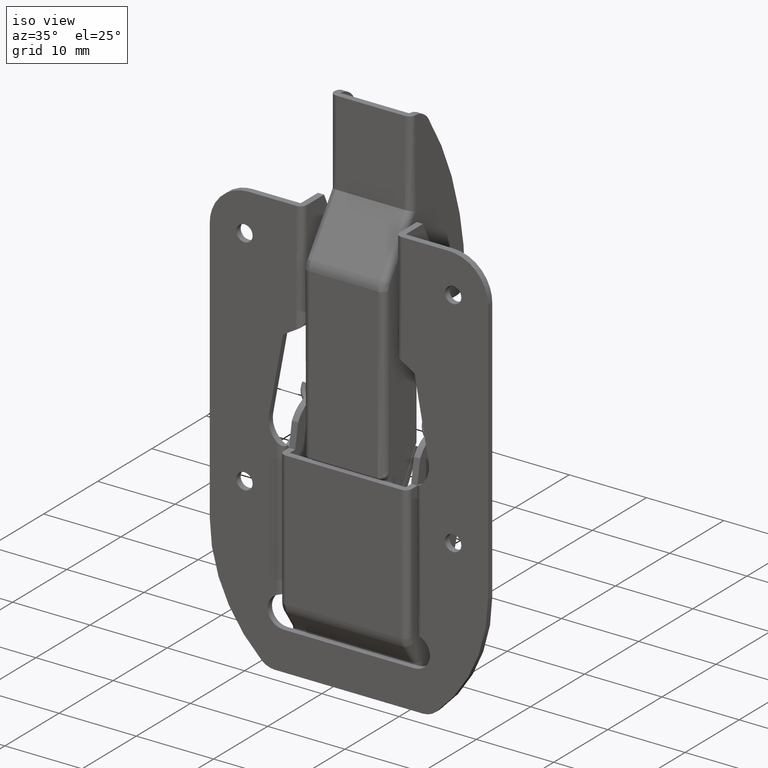
[diagram: clean part render]
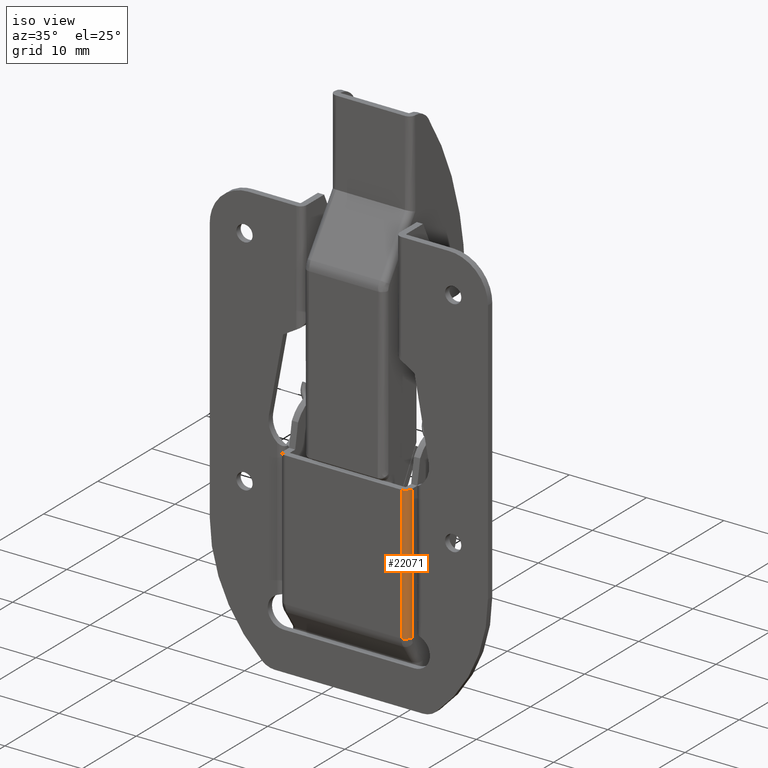
[diagram: same view with one face highlighted and labeled with its STEP entity id]
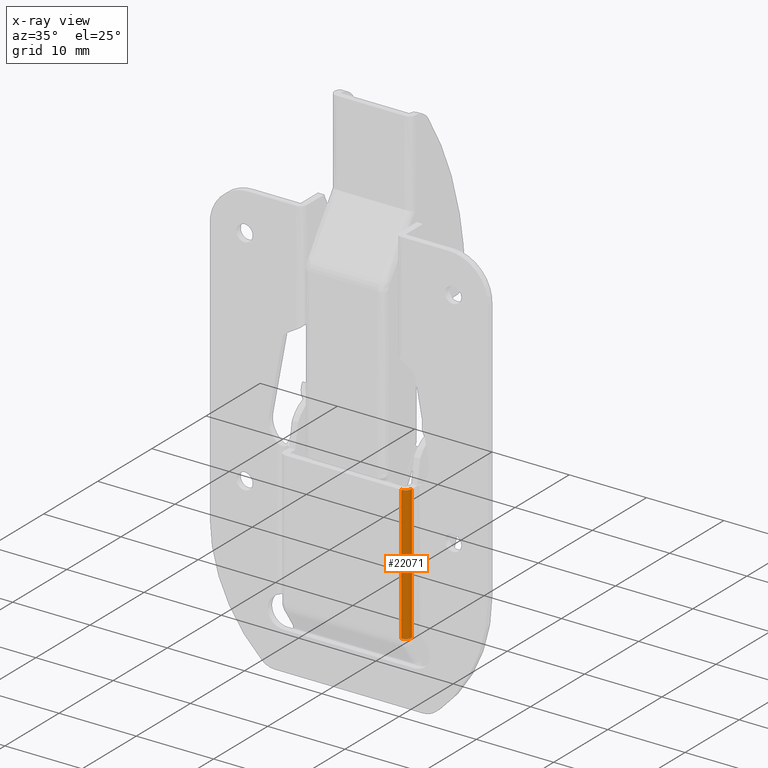
[diagram: x-ray of the same camera — body ghosted, the highlighted face saturated]
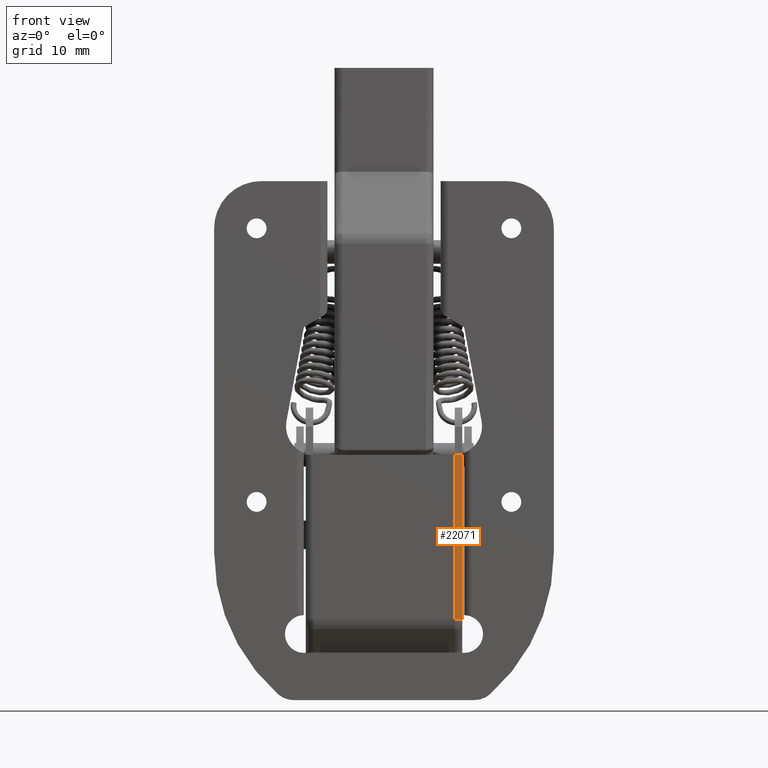
[diagram: same view with one face highlighted and labeled with its STEP entity id]
A machine part, iso view. The second image highlights one B-rep face of the part: STEP entity #22071.
The next image is the same camera in x-ray: the body ghosted, the highlighted face saturated — about 0% of this face is hidden behind the body in this view.
A second angle (front view) of the same face is appended — the face is thin or edge-on in the first view.
In plain terms, the highlighted face is a freeform B-spline surface patch.
Its self-contained STEP definition (entity closure, byte-faithful):
#21978=CARTESIAN_POINT('',(21.800012999999900,-0.200000000000099,-41.394454999999901));
#21979=VERTEX_POINT('',#21978);
#21980=CARTESIAN_POINT('',(21.000012999999850,-1.000000000000100,-41.394454999999901));
#21981=VERTEX_POINT('',#21980);
#21982=CARTESIAN_POINT('',(21.800012999999900,-0.200000000000099,-41.394454999999901));
#21983=CARTESIAN_POINT('',(21.800012999999904,-0.531370849898590,-41.394454999999908));
#21984=CARTESIAN_POINT('',(21.565698424949119,-0.765685424949355,-41.394454999999901));
#21985=CARTESIAN_POINT('',(21.331383849898366,-1.000000000000100,-41.394454999999908));
#21986=CARTESIAN_POINT('',(21.000012999999900,-1.000000000000100,-41.394454999999901));
#21994=(BOUNDED_CURVE()B_SPLINE_CURVE(2,(#21982,#21983,#21984,#21985,#21986),.UNSPECIFIED.,.F.,.U.)B_SPLINE_CURVE_WITH_KNOTS((3,2,3),(0.0,0.500000000000000,1.0),.UNSPECIFIED.)CURVE()GEOMETRIC_REPRESENTATION_ITEM()RATIONAL_B_SPLINE_CURVE((1.0,0.923879532511281,1.0,0.923879532511281,1.0))REPRESENTATION_ITEM(''));
#21995=EDGE_CURVE('',#21979,#21981,#21994,.T.);
#22027=CARTESIAN_POINT('',(21.799738859980302,-0.179058441353801,-41.829316374999912));
#22028=CARTESIAN_POINT('',(21.799738859980302,-0.179058441353794,-23.554267090625000));
#22029=CARTESIAN_POINT('',(21.822806799475622,-1.059987509837058,-41.829316374999905));
#22030=CARTESIAN_POINT('',(21.822806799475622,-1.059987509837056,-23.554267090624993));
#22031=CARTESIAN_POINT('',(20.943757237595392,-0.998019604518869,-41.829316374999905));
#22032=CARTESIAN_POINT('',(20.943757237595392,-0.998019604518866,-23.554267090624997));
#22040=(BOUNDED_SURFACE()B_SPLINE_SURFACE(1,2,((#22027,#22029,#22031),(#22028,#22030,#22032)),.UNSPECIFIED.,.F.,.F.,.U.)B_SPLINE_SURFACE_WITH_KNOTS((2,2),(3,3),(0.0,18.275049284374909),(0.0,0.994518381913565),.UNSPECIFIED.)GEOMETRIC_REPRESENTATION_ITEM()RATIONAL_B_SPLINE_SURFACE(((1.0,0.670944306011289,0.996392484712774),(1.0,0.670944306011289,0.996392484712774)))REPRESENTATION_ITEM('')SURFACE());
#22041=CARTESIAN_POINT('',(21.000012999999850,-1.000000000000092,-24.0));
#22042=VERTEX_POINT('',#22041);
#22043=CARTESIAN_POINT('',(21.800012999999900,-0.200000000000093,-24.0));
#22044=VERTEX_POINT('',#22043);
#22045=CARTESIAN_POINT('',(21.000012999999850,-1.000000000000093,-24.0));
#22046=CARTESIAN_POINT('',(21.800012999999854,-1.000000000000093,-23.999999999999996));
#22047=CARTESIAN_POINT('',(21.800012999999851,-0.200000000000093,-24.0));
#22055=(BOUNDED_CURVE()B_SPLINE_CURVE(2,(#22045,#22046,#22047),.UNSPECIFIED.,.F.,.U.)CURVE()GEOMETRIC_REPRESENTATION_ITEM()QUASI_UNIFORM_CURVE()RATIONAL_B_SPLINE_CURVE((1.0,0.707106781186548,1.0))REPRESENTATION_ITEM(''));
#22056=EDGE_CURVE('',#22042,#22044,#22055,.T.);
#22057=ORIENTED_EDGE('',*,*,#22056,.F.);
#22058=CARTESIAN_POINT('',(21.000012999999850,-1.000000000000100,-41.394454999999901));
#22059=CARTESIAN_POINT('',(21.000012999999850,-1.000000000000092,-24.0));
#22060=QUASI_UNIFORM_CURVE('',1,(#22058,#22059),.UNSPECIFIED.,.F.,.U.);
#22061=EDGE_CURVE('',#21981,#22042,#22060,.T.);
#22062=ORIENTED_EDGE('',*,*,#22061,.F.);
#22063=ORIENTED_EDGE('',*,*,#21995,.F.);
#22064=CARTESIAN_POINT('',(21.800012999999900,-0.200000000000093,-24.0));
#22065=CARTESIAN_POINT('',(21.800012999999900,-0.200000000000099,-41.394454999999901));
#22066=QUASI_UNIFORM_CURVE('',1,(#22064,#22065),.UNSPECIFIED.,.F.,.U.);
#22067=EDGE_CURVE('',#22044,#21979,#22066,.T.);
#22068=ORIENTED_EDGE('',*,*,#22067,.F.);
#22069=EDGE_LOOP('',(#22057,#22062,#22063,#22068));
#22070=FACE_OUTER_BOUND('',#22069,.T.);
#22071=ADVANCED_FACE('',(#22070),#22040,.T.);